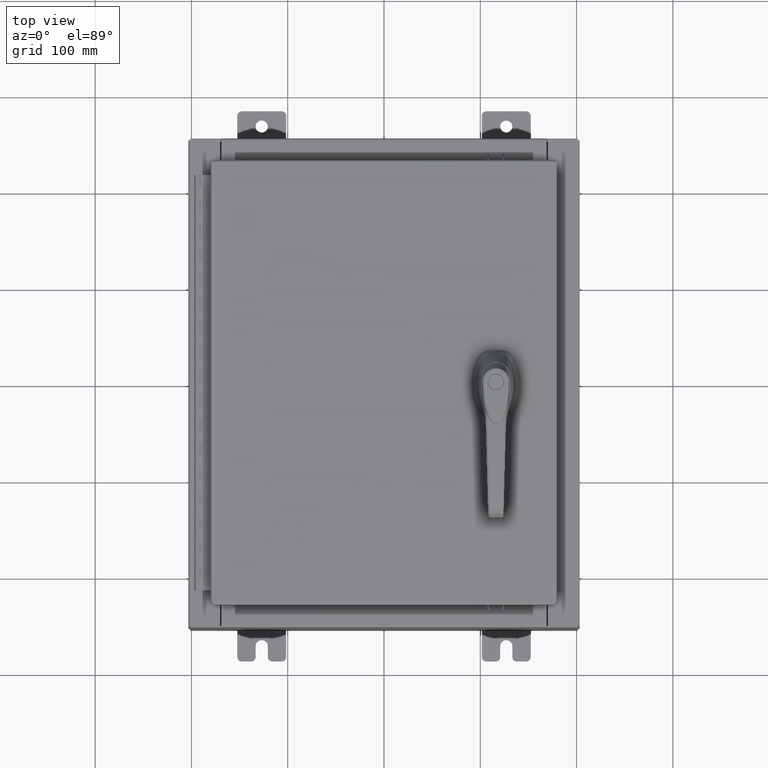
[diagram: clean part render]
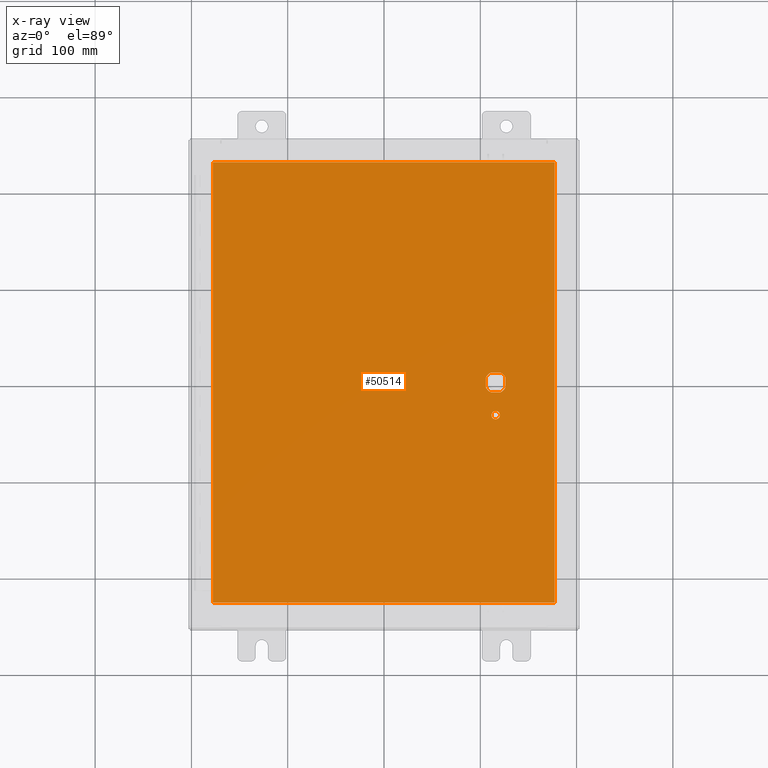
[diagram: x-ray — body ghosted, one internal face saturated and labeled with its STEP entity id]
A machine part, top view, then the same camera in x-ray: the body is ghosted and one INTERNAL B-rep face — a face not visible from any outside direction — is saturated and labeled: STEP entity #50514.
In plain terms, the highlighted planar face has unit normal (0, 0, -1).
Its self-contained STEP definition (entity closure, byte-faithful):
#1173 = VECTOR ( 'NONE', #37582, 39.37007874015748100 ) ;
#2346 = CIRCLE ( 'NONE', #103856, 0.4499999999999156900 ) ;
#2380 = DIRECTION ( 'NONE',  ( -0.0000000000000000000, -0.0000000000000000000, 1.000000000000000000 ) ) ;
#3095 = VECTOR ( 'NONE', #8760, 39.37007874015748100 ) ;
#3410 = AXIS2_PLACEMENT_3D ( 'NONE', #94819, #19991, #79006 ) ;
#3728 = ORIENTED_EDGE ( 'NONE', *, *, #70750, .T. ) ;
#4273 = ORIENTED_EDGE ( 'NONE', *, *, #54484, .T. ) ;
#4978 = CIRCLE ( 'NONE', #67698, 0.4499999999999156900 ) ;
#8760 = DIRECTION ( 'NONE',  ( 0.0000000000000000000, -1.000000000000000000, 0.0000000000000000000 ) ) ;
#10045 = CARTESIAN_POINT ( 'NONE',  ( 4.578000000000002100, -1.338000000000000100, -0.07470000000000003000 ) ) ;
#10444 = CARTESIAN_POINT ( 'NONE',  ( 4.749500000000002100, -1.338000000000000100, -0.07470000000000003000 ) ) ;
#10849 = LINE ( 'NONE', #101082, #97863 ) ;
#11224 = VERTEX_POINT ( 'NONE', #51175 ) ;
#11926 = VERTEX_POINT ( 'NONE', #86784 ) ;
#13974 = CARTESIAN_POINT ( 'NONE',  ( 4.778227370756312100, -0.4029999999999252000, -0.07470000000000003000 ) ) ;
#14111 = CARTESIAN_POINT ( 'NONE',  ( -6.990299999999996800, -9.006299999999997800, -0.07470000000000000300 ) ) ;
#14646 = VERTEX_POINT ( 'NONE', #14111 ) ;
#15676 = CARTESIAN_POINT ( 'NONE',  ( 4.778227370756312100, 0.4029999999999250300, -0.07470000000000003000 ) ) ;
#18242 = CARTESIAN_POINT ( 'NONE',  ( 4.377772629243692900, 0.4029999999999252000, -0.07470000000000003000 ) ) ;
#18374 = CARTESIAN_POINT ( 'NONE',  ( -6.990299999999997700, 9.006299999999999500, -0.07470000000000000300 ) ) ;
#18529 = DIRECTION ( 'NONE',  ( -1.000000000000000000, 0.0000000000000000000, 0.0000000000000000000 ) ) ;
#19991 = DIRECTION ( 'NONE',  ( 0.0000000000000000000, 0.0000000000000000000, -1.000000000000000000 ) ) ;
#20087 = CIRCLE ( 'NONE', #45710, 0.1715000000000000700 ) ;
#20174 = EDGE_CURVE ( 'NONE', #11224, #103109, #80431, .T. ) ;
#20699 = EDGE_LOOP ( 'NONE', ( #40806, #38435, #3728, #24293, #34310, #4273, #83010, #104899 ) ) ;
#22128 = EDGE_CURVE ( 'NONE', #62435, #28870, #2346, .T. ) ;
#23587 = ORIENTED_EDGE ( 'NONE', *, *, #20174, .F. ) ;
#24014 = DIRECTION ( 'NONE',  ( 0.0000000000000000000, 1.000000000000000000, 0.0000000000000000000 ) ) ;
#24293 = ORIENTED_EDGE ( 'NONE', *, *, #85979, .T. ) ;
#24480 = CARTESIAN_POINT ( 'NONE',  ( 0.0000000000000000000, -0.4029999999999252000, -0.07470000000000003000 ) ) ;
#25915 = CIRCLE ( 'NONE', #109083, 0.4499999999999156900 ) ;
#26220 = EDGE_CURVE ( 'NONE', #14646, #11224, #89337, .T. ) ;
#26803 = DIRECTION ( 'NONE',  ( -0.0000000000000000000, -0.0000000000000000000, 1.000000000000000000 ) ) ;
#27428 = VERTEX_POINT ( 'NONE', #10444 ) ;
#27437 = FACE_BOUND ( 'NONE', #20699, .T. ) ;
#27687 = EDGE_CURVE ( 'NONE', #63445, #104567, #25915, .T. ) ;
#27977 = VERTEX_POINT ( 'NONE', #15676 ) ;
#28126 = PLANE ( 'NONE',  #3410 ) ;
#28870 = VERTEX_POINT ( 'NONE', #35771 ) ;
#29126 = CARTESIAN_POINT ( 'NONE',  ( 4.980999999999927900, 0.0000000000000000000, -0.07470000000000003000 ) ) ;
#29733 = VECTOR ( 'NONE', #52555, 39.37007874015748100 ) ;
#30000 = VECTOR ( 'NONE', #32991, 39.37007874015748100 ) ;
#32991 = DIRECTION ( 'NONE',  ( 1.000000000000000000, 0.0000000000000000000, 0.0000000000000000000 ) ) ;
#33970 = EDGE_CURVE ( 'NONE', #27428, #65702, #20087, .T. ) ;
#34310 = ORIENTED_EDGE ( 'NONE', *, *, #27687, .T. ) ;
#35307 = LINE ( 'NONE', #74667, #55051 ) ;
#35771 = CARTESIAN_POINT ( 'NONE',  ( 4.980999999999927900, -0.2002273707563080300, -0.07470000000000003000 ) ) ;
#37582 = DIRECTION ( 'NONE',  ( 0.0000000000000000000, -1.000000000000000000, 0.0000000000000000000 ) ) ;
#37634 = LINE ( 'NONE', #103024, #29733 ) ;
#37943 = EDGE_CURVE ( 'NONE', #107970, #28870, #45979, .T. ) ;
#38318 = ORIENTED_EDGE ( 'NONE', *, *, #26220, .F. ) ;
#38435 = ORIENTED_EDGE ( 'NONE', *, *, #37943, .F. ) ;
#39532 = EDGE_LOOP ( 'NONE', ( #23587, #38318, #105796, #73530 ) ) ;
#39837 = CARTESIAN_POINT ( 'NONE',  ( 4.578000000000002100, 0.0000000000000000000, -0.07470000000000003000 ) ) ;
#40806 = ORIENTED_EDGE ( 'NONE', *, *, #22128, .T. ) ;
#41989 = ORIENTED_EDGE ( 'NONE', *, *, #77568, .T. ) ;
#44734 = VERTEX_POINT ( 'NONE', #18374 ) ;
#45710 = AXIS2_PLACEMENT_3D ( 'NONE', #52913, #2380, #61379 ) ;
#45979 = LINE ( 'NONE', #29126, #1173 ) ;
#47182 = FACE_BOUND ( 'NONE', #51847, .T. ) ;
#47693 = DIRECTION ( 'NONE',  ( -0.0000000000000000000, -0.0000000000000000000, 1.000000000000000000 ) ) ;
#48321 = DIRECTION ( 'NONE',  ( -1.000000000000000000, 0.0000000000000000000, 0.0000000000000000000 ) ) ;
#48673 = DIRECTION ( 'NONE',  ( -0.0000000000000000000, -0.0000000000000000000, 1.000000000000000000 ) ) ;
#49830 = CARTESIAN_POINT ( 'NONE',  ( 6.990300000000002200, -9.006299999999997800, -0.07470000000000021100 ) ) ;
#50514 = ADVANCED_FACE ( 'NONE', ( #47182, #69641, #27437 ), #28126, .T. ) ;
#50634 = LINE ( 'NONE', #67753, #3095 ) ;
#51175 = CARTESIAN_POINT ( 'NONE',  ( 6.990300000000002200, -9.006299999999997800, -0.07470000000000000300 ) ) ;
#51758 = CARTESIAN_POINT ( 'NONE',  ( 6.990300000000001300, 9.006300000000001300, -0.07470000000000000300 ) ) ;
#51847 = EDGE_LOOP ( 'NONE', ( #77663, #41989 ) ) ;
#52555 = DIRECTION ( 'NONE',  ( 0.0000000000000000000, -1.000000000000000000, 0.0000000000000000000 ) ) ;
#52913 = CARTESIAN_POINT ( 'NONE',  ( 4.578000000000002100, -1.338000000000000100, -0.07470000000000003000 ) ) ;
#53499 = VERTEX_POINT ( 'NONE', #67144 ) ;
#54484 = EDGE_CURVE ( 'NONE', #104567, #53499, #37634, .T. ) ;
#55051 = VECTOR ( 'NONE', #83131, 39.37007874015748100 ) ;
#57267 = DIRECTION ( 'NONE',  ( -1.000000000000000000, 0.0000000000000000000, 0.0000000000000000000 ) ) ;
#61379 = DIRECTION ( 'NONE',  ( -1.000000000000000000, 0.0000000000000000000, 0.0000000000000000000 ) ) ;
#62435 = VERTEX_POINT ( 'NONE', #13974 ) ;
#62732 = CARTESIAN_POINT ( 'NONE',  ( 4.980999999999927900, 0.2002273707563080300, -0.07470000000000003000 ) ) ;
#63445 = VERTEX_POINT ( 'NONE', #18242 ) ;
#64630 = EDGE_CURVE ( 'NONE', #53499, #11926, #4978, .T. ) ;
#65702 = VERTEX_POINT ( 'NONE', #75270 ) ;
#66939 = VECTOR ( 'NONE', #108917, 39.37007874015748100 ) ;
#67144 = CARTESIAN_POINT ( 'NONE',  ( 4.175000000000076200, -0.2002273707563079800, -0.07470000000000003000 ) ) ;
#67698 = AXIS2_PLACEMENT_3D ( 'NONE', #99175, #48673, #107672 ) ;
#67753 = CARTESIAN_POINT ( 'NONE',  ( -6.990299999999997700, 9.006300000000001300, -0.07470000000000019700 ) ) ;
#69034 = DIRECTION ( 'NONE',  ( -0.0000000000000000000, -0.0000000000000000000, 1.000000000000000000 ) ) ;
#69641 = FACE_OUTER_BOUND ( 'NONE', #39532, .T. ) ;
#70750 = EDGE_CURVE ( 'NONE', #107970, #27977, #105046, .T. ) ;
#73530 = ORIENTED_EDGE ( 'NONE', *, *, #91721, .F. ) ;
#74667 = CARTESIAN_POINT ( 'NONE',  ( 6.990300000000002200, 9.006300000000001300, -0.07470000000000076600 ) ) ;
#75270 = CARTESIAN_POINT ( 'NONE',  ( 4.406500000000002100, -1.338000000000000100, -0.07470000000000003000 ) ) ;
#75963 = EDGE_CURVE ( 'NONE', #44734, #14646, #50634, .T. ) ;
#77328 = CARTESIAN_POINT ( 'NONE',  ( 4.578000000000002100, 0.0000000000000000000, -0.07470000000000003000 ) ) ;
#77524 = LINE ( 'NONE', #24480, #30000 ) ;
#77568 = EDGE_CURVE ( 'NONE', #65702, #27428, #95229, .T. ) ;
#77663 = ORIENTED_EDGE ( 'NONE', *, *, #33970, .T. ) ;
#79006 = DIRECTION ( 'NONE',  ( -1.000000000000000000, 0.0000000000000000000, -0.0000000000000000000 ) ) ;
#80431 = LINE ( 'NONE', #49830, #94870 ) ;
#83010 = ORIENTED_EDGE ( 'NONE', *, *, #64630, .T. ) ;
#83131 = DIRECTION ( 'NONE',  ( -1.000000000000000000, -0.0000000000000000000, -0.0000000000000000000 ) ) ;
#85791 = DIRECTION ( 'NONE',  ( -1.000000000000000000, 0.0000000000000000000, 0.0000000000000000000 ) ) ;
#85979 = EDGE_CURVE ( 'NONE', #27977, #63445, #10849, .T. ) ;
#86784 = CARTESIAN_POINT ( 'NONE',  ( 4.377772629243692900, -0.4029999999999250300, -0.07470000000000003000 ) ) ;
#89337 = LINE ( 'NONE', #100390, #66939 ) ;
#91721 = EDGE_CURVE ( 'NONE', #103109, #44734, #35307, .T. ) ;
#91744 = EDGE_CURVE ( 'NONE', #11926, #62435, #77524, .T. ) ;
#94819 = CARTESIAN_POINT ( 'NONE',  ( 0.0000000000000000000, 0.0000000000000000000, -0.07470000000000000300 ) ) ;
#94870 = VECTOR ( 'NONE', #24014, 39.37007874015748100 ) ;
#95229 = CIRCLE ( 'NONE', #95705, 0.1715000000000000700 ) ;
#95705 = AXIS2_PLACEMENT_3D ( 'NONE', #10045, #69034, #18529 ) ;
#97863 = VECTOR ( 'NONE', #57267, 39.37007874015748100 ) ;
#98187 = CARTESIAN_POINT ( 'NONE',  ( 4.578000000000002100, 0.0000000000000000000, -0.07470000000000003000 ) ) ;
#98811 = DIRECTION ( 'NONE',  ( -0.0000000000000000000, -0.0000000000000000000, 1.000000000000000000 ) ) ;
#99175 = CARTESIAN_POINT ( 'NONE',  ( 4.578000000000002100, 0.0000000000000000000, -0.07470000000000003000 ) ) ;
#100390 = CARTESIAN_POINT ( 'NONE',  ( -6.990299999999997700, -9.006299999999997800, -0.07470000000000021100 ) ) ;
#101082 = CARTESIAN_POINT ( 'NONE',  ( 0.0000000000000000000, 0.4029999999999252000, -0.07470000000000003000 ) ) ;
#102517 = AXIS2_PLACEMENT_3D ( 'NONE', #77328, #26803, #85791 ) ;
#103024 = CARTESIAN_POINT ( 'NONE',  ( 4.175000000000076200, 0.0000000000000000000, -0.07470000000000003000 ) ) ;
#103109 = VERTEX_POINT ( 'NONE', #51758 ) ;
#103856 = AXIS2_PLACEMENT_3D ( 'NONE', #98187, #47693, #106672 ) ;
#104230 = CARTESIAN_POINT ( 'NONE',  ( 4.175000000000076200, 0.2002273707563080300, -0.07470000000000003000 ) ) ;
#104567 = VERTEX_POINT ( 'NONE', #104230 ) ;
#104899 = ORIENTED_EDGE ( 'NONE', *, *, #91744, .T. ) ;
#105046 = CIRCLE ( 'NONE', #102517, 0.4499999999999156900 ) ;
#105796 = ORIENTED_EDGE ( 'NONE', *, *, #75963, .F. ) ;
#106672 = DIRECTION ( 'NONE',  ( -1.000000000000000000, 0.0000000000000000000, 0.0000000000000000000 ) ) ;
#107672 = DIRECTION ( 'NONE',  ( -1.000000000000000000, 8.881784197001256300E-016, 0.0000000000000000000 ) ) ;
#107970 = VERTEX_POINT ( 'NONE', #62732 ) ;
#108917 = DIRECTION ( 'NONE',  ( 1.000000000000000000, -0.0000000000000000000, -0.0000000000000000000 ) ) ;
#109083 = AXIS2_PLACEMENT_3D ( 'NONE', #39837, #98811, #48321 ) ;